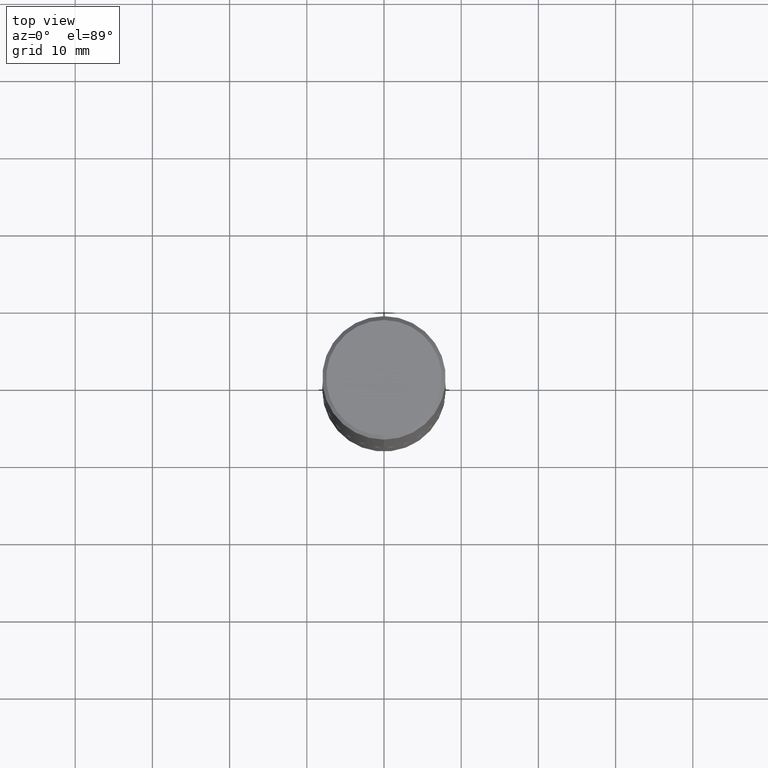
[diagram: clean part render]
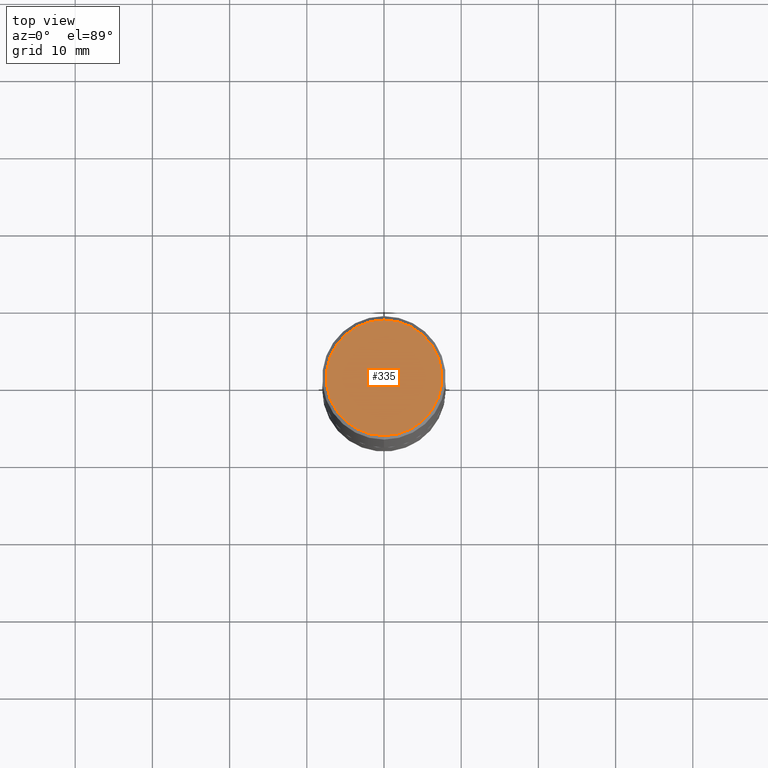
[diagram: same view with one face highlighted and labeled with its STEP entity id]
A machine part, top view. The second image highlights one B-rep face of the part: STEP entity #335.
In plain terms, the highlighted planar face has unit normal (0, -0, -1).
Its self-contained STEP definition (entity closure, byte-faithful):
#8 = VERTEX_POINT ( 'NONE', #278 ) ;
#27 = AXIS2_PLACEMENT_3D ( 'NONE', #114, #126, #324 ) ;
#35 = ORIENTED_EDGE ( 'NONE', *, *, #55, .T. ) ;
#43 = CARTESIAN_POINT ( 'NONE',  ( 2.059624841783565247E-15, 0.2949500000000001565, -1.117050136154758706E-15 ) ) ;
#45 = DIRECTION ( 'NONE',  ( -6.982962677686265922E-15, -1.000000000000000000, 3.489672281144648363E-15 ) ) ;
#55 = EDGE_CURVE ( 'NONE', #8, #305, #156, .T. ) ;
#64 = AXIS2_PLACEMENT_3D ( 'NONE', #139, #273, #45 ) ;
#71 = FACE_OUTER_BOUND ( 'NONE', #408, .T. ) ;
#114 = CARTESIAN_POINT ( 'NONE',  ( 4.295056925857058757E-45, -6.125861232635271610E-31, -1.755425936622887402E-16 ) ) ;
#120 = AXIS2_PLACEMENT_3D ( 'NONE', #43, #237, #309 ) ;
#126 = DIRECTION ( 'NONE',  ( -2.446732064424175452E-29, 3.489672281144647968E-15, 1.000000000000000000 ) ) ;
#139 = CARTESIAN_POINT ( 'NONE',  ( 4.295056925857058757E-45, -6.125861232635271610E-31, -1.755425936622887402E-16 ) ) ;
#156 = CIRCLE ( 'NONE', #27, 0.2949500000000001565 ) ;
#206 = PLANE ( 'NONE',  #120 ) ;
#237 = DIRECTION ( 'NONE',  ( 2.446732064424174891E-29, -3.489672281144648363E-15, -1.000000000000000000 ) ) ;
#273 = DIRECTION ( 'NONE',  ( -2.446732064424175452E-29, 3.489672281144647968E-15, 1.000000000000000000 ) ) ;
#278 = CARTESIAN_POINT ( 'NONE',  ( 2.129454468560427362E-15, 0.2949500000000001565, -1.204821432985903076E-15 ) ) ;
#287 = EDGE_CURVE ( 'NONE', #305, #8, #331, .T. ) ;
#305 = VERTEX_POINT ( 'NONE', #394 ) ;
#309 = DIRECTION ( 'NONE',  ( 6.982962677686265922E-15, 1.000000000000000000, -3.489672281144648363E-15 ) ) ;
#324 = DIRECTION ( 'NONE',  ( -6.982962677686265922E-15, -1.000000000000000000, 3.489672281144648363E-15 ) ) ;
#331 = CIRCLE ( 'NONE', #64, 0.2949500000000001565 ) ;
#335 = ADVANCED_FACE ( 'NONE', ( #71 ), #206, .F. ) ;
#364 = ORIENTED_EDGE ( 'NONE', *, *, #287, .T. ) ;
#394 = CARTESIAN_POINT ( 'NONE',  ( -2.092108864420428426E-15, -0.2949500000000001565, 8.537362456613256939E-16 ) ) ;
#408 = EDGE_LOOP ( 'NONE', ( #35, #364 ) ) ;